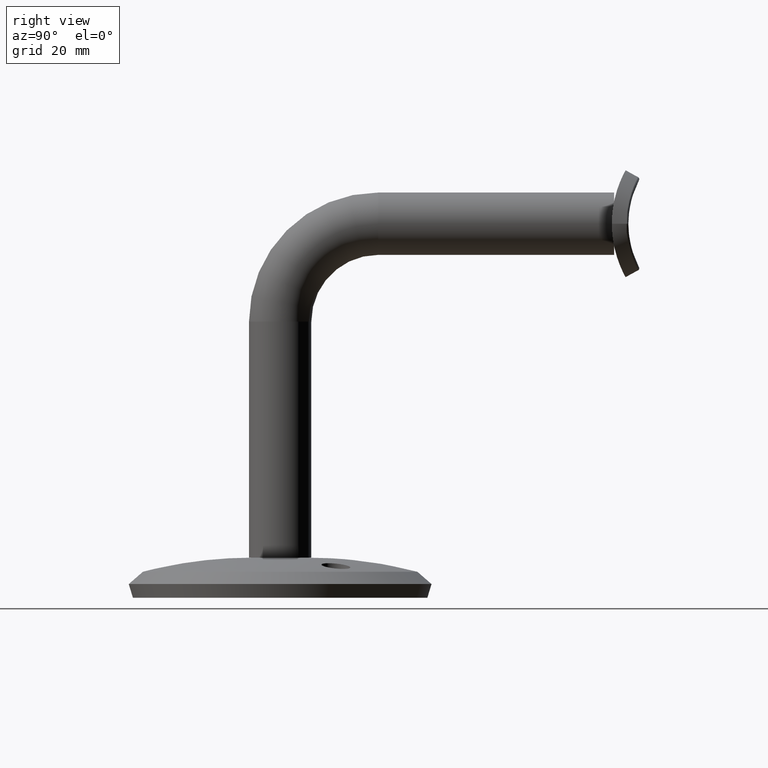
[diagram: clean part render]
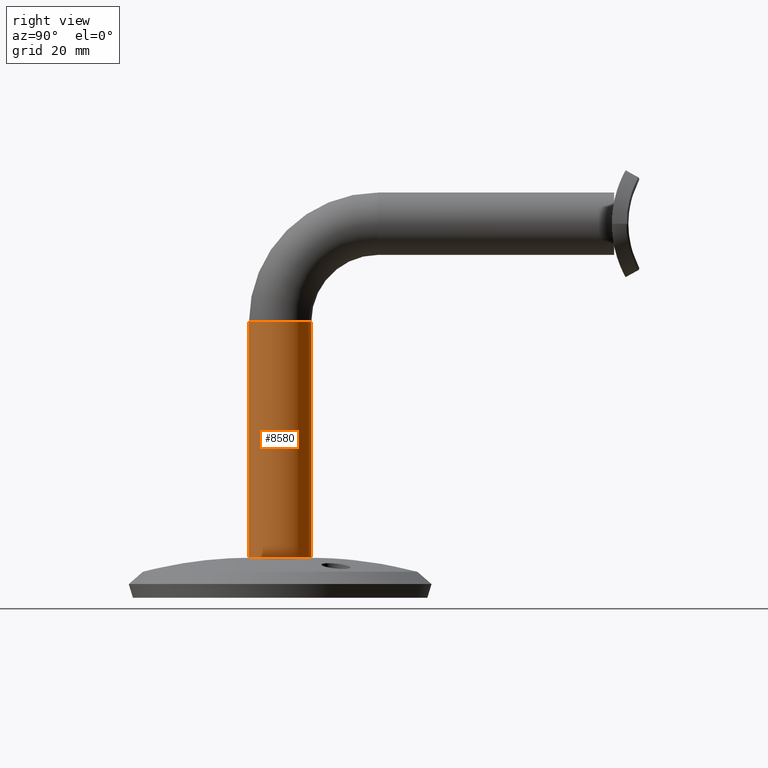
[diagram: same view with one face highlighted and labeled with its STEP entity id]
A machine part, right view. The second image highlights one B-rep face of the part: STEP entity #8580.
In plain terms, the highlighted cylindrical surface (edge-blend (fillet) strip) has radius 7 mm, axis along (0, -0, 1).
Its self-contained STEP definition (entity closure, byte-faithful):
#447 = CARTESIAN_POINT ( 'NONE',  ( 0.000000000000000000, -6.949885547581345981E-15, 53.00000000000000000 ) ) ;
#455 = CARTESIAN_POINT ( 'NONE',  ( 8.572527594031474176E-16, 7.000000000000000888, 9.179094119447060841E-16 ) ) ;
#507 = DIRECTION ( 'NONE',  ( 1.000000000000000000, 0.000000000000000000, 0.000000000000000000 ) ) ;
#597 = EDGE_CURVE ( 'NONE', #5077, #7603, #16023, .T. ) ;
#729 = DIRECTION ( 'NONE',  ( 0.000000000000000000, -1.000000000000000000, -1.311299159921008480E-16 ) ) ;
#1917 = DIRECTION ( 'NONE',  ( 1.000000000000000000, 0.000000000000000000, 0.000000000000000000 ) ) ;
#1952 = CIRCLE ( 'NONE', #14452, 7.000000000000000888 ) ;
#3049 = DIRECTION ( 'NONE',  ( 0.000000000000000000, -1.311299159921008480E-16, 1.000000000000000000 ) ) ;
#3494 = EDGE_CURVE ( 'NONE', #5077, #6012, #5753, .T. ) ;
#4289 = DIRECTION ( 'NONE',  ( 0.000000000000000000, -1.311299159921008480E-16, 1.000000000000000000 ) ) ;
#4484 = CARTESIAN_POINT ( 'NONE',  ( 8.572527594031477134E-16, 7.000000000000000888, 0.000000000000000000 ) ) ;
#4608 = CARTESIAN_POINT ( 'NONE',  ( 0.000000000000000000, 0.000000000000000000, 0.000000000000000000 ) ) ;
#4793 = FACE_OUTER_BOUND ( 'NONE', #15033, .T. ) ;
#4920 = VECTOR ( 'NONE', #3049, 1000.000000000000000 ) ;
#5077 = VERTEX_POINT ( 'NONE', #14984 ) ;
#5751 = ORIENTED_EDGE ( 'NONE', *, *, #597, .T. ) ;
#5753 = LINE ( 'NONE', #10782, #9341 ) ;
#5845 = DIRECTION ( 'NONE',  ( 0.000000000000000000, -1.311299159921008480E-16, 1.000000000000000000 ) ) ;
#5939 = ORIENTED_EDGE ( 'NONE', *, *, #3494, .F. ) ;
#6012 = VERTEX_POINT ( 'NONE', #12972 ) ;
#7024 = DIRECTION ( 'NONE',  ( 0.000000000000000000, 0.000000000000000000, 1.000000000000000000 ) ) ;
#7226 = ORIENTED_EDGE ( 'NONE', *, *, #13342, .T. ) ;
#7389 = CYLINDRICAL_SURFACE ( 'NONE', #13369, 7.000000000000000888 ) ;
#7603 = VERTEX_POINT ( 'NONE', #4484 ) ;
#8580 = ADVANCED_FACE ( 'NONE', ( #4793 ), #7389, .T. ) ;
#8921 = EDGE_CURVE ( 'NONE', #6012, #16483, #1952, .T. ) ;
#9341 = VECTOR ( 'NONE', #4289, 1000.000000000000000 ) ;
#10065 = ORIENTED_EDGE ( 'NONE', *, *, #8921, .F. ) ;
#10782 = CARTESIAN_POINT ( 'NONE',  ( 0.000000000000000000, -7.000000000000000888, -9.179094119447060841E-16 ) ) ;
#11149 = AXIS2_PLACEMENT_3D ( 'NONE', #12296, #7024, #1917 ) ;
#11706 = CARTESIAN_POINT ( 'NONE',  ( 8.572527594031474176E-16, 6.999999999999993783, 53.00000000000000000 ) ) ;
#12296 = CARTESIAN_POINT ( 'NONE',  ( 0.000000000000000000, 0.000000000000000000, 0.000000000000000000 ) ) ;
#12972 = CARTESIAN_POINT ( 'NONE',  ( 0.000000000000000000, -7.000000000000007994, 53.00000000000000000 ) ) ;
#13342 = EDGE_CURVE ( 'NONE', #7603, #16483, #15772, .T. ) ;
#13369 = AXIS2_PLACEMENT_3D ( 'NONE', #4608, #5845, #729 ) ;
#14452 = AXIS2_PLACEMENT_3D ( 'NONE', #447, #15846, #507 ) ;
#14984 = CARTESIAN_POINT ( 'NONE',  ( 0.000000000000000000, -7.000000000000000888, 0.000000000000000000 ) ) ;
#15033 = EDGE_LOOP ( 'NONE', ( #5751, #7226, #10065, #5939 ) ) ;
#15772 = LINE ( 'NONE', #455, #4920 ) ;
#15846 = DIRECTION ( 'NONE',  ( 0.000000000000000000, 0.000000000000000000, 1.000000000000000000 ) ) ;
#16023 = CIRCLE ( 'NONE', #11149, 7.000000000000000888 ) ;
#16483 = VERTEX_POINT ( 'NONE', #11706 ) ;